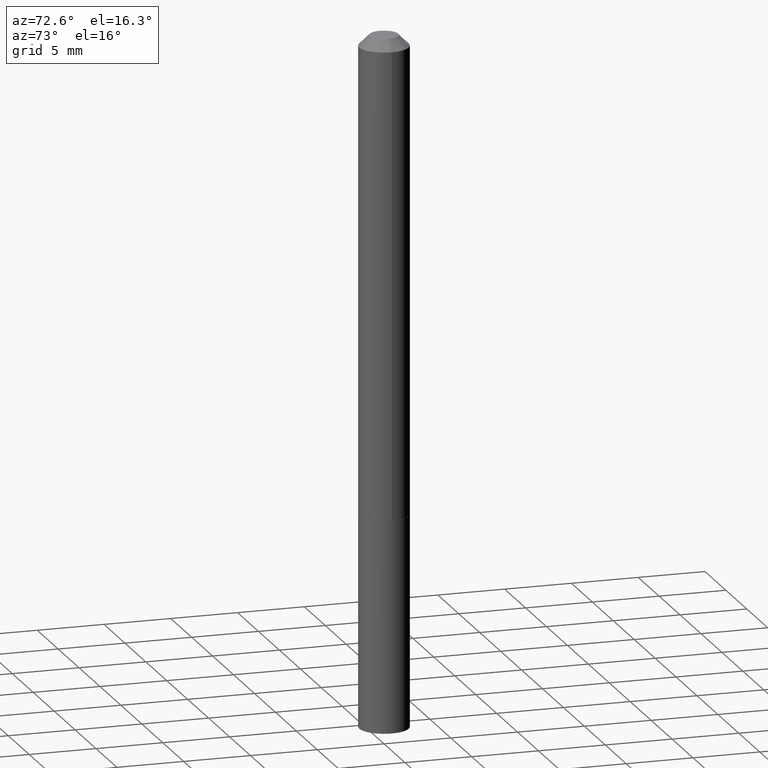
[diagram: clean part render]
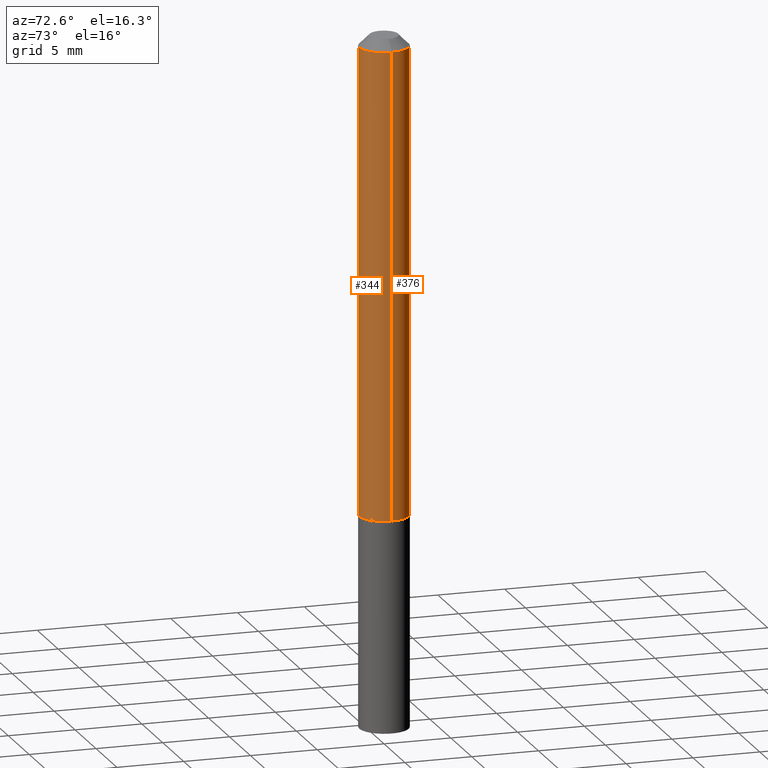
[diagram: same view with one multi-face feature highlighted, each face labeled with its STEP entity id]
A machine part, auxiliary view. The highlighted faces form ONE feature: a constant-radius fillet chain: 2 tangent blend faces with common blend radius 1.8504 mm. The faces share edges in the B-rep.
Their STEP definitions:
[1] entity #376 (Cylinder):
#7 = DIRECTION ( 'NONE',  ( 1.000000000000000000, -6.982962677686266711E-15, 4.876176775795936353E-29 ) ) ;
#14 = EDGE_CURVE ( 'NONE', #55, #127, #272, .T. ) ;
#31 = EDGE_CURVE ( 'NONE', #127, #251, #166, .T. ) ;
#33 = DIRECTION ( 'NONE',  ( -2.445468806185136877E-29, 3.491481338843145188E-15, 1.000000000000000000 ) ) ;
#37 = CARTESIAN_POINT ( 'NONE',  ( 7.642090019328602662E-31, -1.091087918388490267E-16, -0.03125000000000020817 ) ) ;
#38 = AXIS2_PLACEMENT_3D ( 'NONE', #37, #389, #361 ) ;
#55 = VERTEX_POINT ( 'NONE', #135 ) ;
#61 = LINE ( 'NONE', #120, #362 ) ;
#98 = DIRECTION ( 'NONE',  ( -2.445468806185136597E-29, 3.491481338843145583E-15, 1.000000000000000000 ) ) ;
#111 = AXIS2_PLACEMENT_3D ( 'NONE', #312, #374, #185 ) ;
#119 = AXIS2_PLACEMENT_3D ( 'NONE', #303, #98, #7 ) ;
#120 = CARTESIAN_POINT ( 'NONE',  ( 0.07285000000000008136, -5.087088310694450726E-16, 3.552294781167343726E-30 ) ) ;
#127 = VERTEX_POINT ( 'NONE', #279 ) ;
#135 = CARTESIAN_POINT ( 'NONE',  ( 0.07285000000000016462, -5.414240112144066527E-15, -1.405000000000000471 ) ) ;
#166 = LINE ( 'NONE', #224, #379 ) ;
#185 = DIRECTION ( 'NONE',  ( 1.000000000000000000, -6.982962677686262766E-15, 0.000000000000000000 ) ) ;
#200 = EDGE_CURVE ( 'NONE', #55, #227, #61, .T. ) ;
#201 = ORIENTED_EDGE ( 'NONE', *, *, #31, .T. ) ;
#211 = CARTESIAN_POINT ( 'NONE',  ( 0.07284999999999999809, -6.178176229082934830E-16, -0.03125000000000020817 ) ) ;
#224 = CARTESIAN_POINT ( 'NONE',  ( -0.07285000000000008136, 5.176303830012335635E-16, -3.583444213250702632E-30 ) ) ;
#227 = VERTEX_POINT ( 'NONE', #211 ) ;
#251 = VERTEX_POINT ( 'NONE', #267 ) ;
#267 = CARTESIAN_POINT ( 'NONE',  ( -0.07284999999999999809, -1.989689653455500531E-15, -0.03125000000000020817 ) ) ;
#272 = CIRCLE ( 'NONE', #111, 0.07285000000000016462 ) ;
#279 = CARTESIAN_POINT ( 'NONE',  ( -0.07285000000000016462, -4.387900898073387102E-15, -1.405000000000000471 ) ) ;
#280 = CIRCLE ( 'NONE', #38, 0.07284999999999999809 ) ;
#282 = DIRECTION ( 'NONE',  ( -2.445468806185136877E-29, 3.491481338843145188E-15, 1.000000000000000000 ) ) ;
#301 = EDGE_CURVE ( 'NONE', #227, #251, #280, .T. ) ;
#303 = CARTESIAN_POINT ( 'NONE',  ( 0.000000000000000000, 0.000000000000000000, 0.000000000000000000 ) ) ;
#305 = EDGE_LOOP ( 'NONE', ( #384, #201, #343, #369 ) ) ;
#306 = CYLINDRICAL_SURFACE ( 'NONE', #119, 0.07285000000000008136 ) ;
#312 = CARTESIAN_POINT ( 'NONE',  ( 3.435883672690118017E-29, -4.905531281074621455E-15, -1.405000000000000471 ) ) ;
#341 = FACE_OUTER_BOUND ( 'NONE', #305, .T. ) ;
#343 = ORIENTED_EDGE ( 'NONE', *, *, #301, .F. ) ;
#361 = DIRECTION ( 'NONE',  ( 1.000000000000000000, -6.982962677686265922E-15, 0.000000000000000000 ) ) ;
#362 = VECTOR ( 'NONE', #33, 39.37007874015748143 ) ;
#369 = ORIENTED_EDGE ( 'NONE', *, *, #200, .F. ) ;
#374 = DIRECTION ( 'NONE',  ( -2.445468806185136597E-29, 3.491481338843145583E-15, 1.000000000000000000 ) ) ;
#376 = ADVANCED_FACE ( 'NONE', ( #341 ), #306, .T. ) ;
#379 = VECTOR ( 'NONE', #282, 39.37007874015748143 ) ;
#384 = ORIENTED_EDGE ( 'NONE', *, *, #14, .T. ) ;
#389 = DIRECTION ( 'NONE',  ( -2.445468806185136597E-29, 3.491481338843145583E-15, 1.000000000000000000 ) ) ;
[2] entity #344 (Cylinder):
#15 = ORIENTED_EDGE ( 'NONE', *, *, #277, .T. ) ;
#29 = DIRECTION ( 'NONE',  ( 1.000000000000000000, -6.982962677686265922E-15, 0.000000000000000000 ) ) ;
#31 = EDGE_CURVE ( 'NONE', #127, #251, #166, .T. ) ;
#33 = DIRECTION ( 'NONE',  ( -2.445468806185136877E-29, 3.491481338843145188E-15, 1.000000000000000000 ) ) ;
#55 = VERTEX_POINT ( 'NONE', #135 ) ;
#61 = LINE ( 'NONE', #120, #362 ) ;
#65 = FACE_OUTER_BOUND ( 'NONE', #167, .T. ) ;
#96 = CYLINDRICAL_SURFACE ( 'NONE', #299, 0.07285000000000008136 ) ;
#120 = CARTESIAN_POINT ( 'NONE',  ( 0.07285000000000008136, -5.087088310694450726E-16, 3.552294781167343726E-30 ) ) ;
#124 = CIRCLE ( 'NONE', #252, 0.07284999999999999809 ) ;
#125 = CARTESIAN_POINT ( 'NONE',  ( 0.000000000000000000, 0.000000000000000000, 0.000000000000000000 ) ) ;
#127 = VERTEX_POINT ( 'NONE', #279 ) ;
#135 = CARTESIAN_POINT ( 'NONE',  ( 0.07285000000000016462, -5.414240112144066527E-15, -1.405000000000000471 ) ) ;
#147 = DIRECTION ( 'NONE',  ( -2.445468806185136597E-29, 3.491481338843145583E-15, 1.000000000000000000 ) ) ;
#159 = ORIENTED_EDGE ( 'NONE', *, *, #208, .F. ) ;
#166 = LINE ( 'NONE', #224, #379 ) ;
#167 = EDGE_LOOP ( 'NONE', ( #247, #15, #353, #159 ) ) ;
#181 = DIRECTION ( 'NONE',  ( 1.000000000000000000, -6.982962677686266711E-15, 4.876176775795936353E-29 ) ) ;
#200 = EDGE_CURVE ( 'NONE', #55, #227, #61, .T. ) ;
#208 = EDGE_CURVE ( 'NONE', #251, #227, #124, .T. ) ;
#211 = CARTESIAN_POINT ( 'NONE',  ( 0.07284999999999999809, -6.178176229082934830E-16, -0.03125000000000020817 ) ) ;
#212 = DIRECTION ( 'NONE',  ( -2.445468806185136597E-29, 3.491481338843145583E-15, 1.000000000000000000 ) ) ;
#224 = CARTESIAN_POINT ( 'NONE',  ( -0.07285000000000008136, 5.176303830012335635E-16, -3.583444213250702632E-30 ) ) ;
#227 = VERTEX_POINT ( 'NONE', #211 ) ;
#237 = CIRCLE ( 'NONE', #294, 0.07285000000000016462 ) ;
#247 = ORIENTED_EDGE ( 'NONE', *, *, #31, .F. ) ;
#251 = VERTEX_POINT ( 'NONE', #267 ) ;
#252 = AXIS2_PLACEMENT_3D ( 'NONE', #289, #297, #29 ) ;
#266 = DIRECTION ( 'NONE',  ( 1.000000000000000000, -6.982962677686262766E-15, 0.000000000000000000 ) ) ;
#267 = CARTESIAN_POINT ( 'NONE',  ( -0.07284999999999999809, -1.989689653455500531E-15, -0.03125000000000020817 ) ) ;
#270 = CARTESIAN_POINT ( 'NONE',  ( 3.435883672690118017E-29, -4.905531281074621455E-15, -1.405000000000000471 ) ) ;
#277 = EDGE_CURVE ( 'NONE', #127, #55, #237, .T. ) ;
#279 = CARTESIAN_POINT ( 'NONE',  ( -0.07285000000000016462, -4.387900898073387102E-15, -1.405000000000000471 ) ) ;
#282 = DIRECTION ( 'NONE',  ( -2.445468806185136877E-29, 3.491481338843145188E-15, 1.000000000000000000 ) ) ;
#289 = CARTESIAN_POINT ( 'NONE',  ( 7.642090019328602662E-31, -1.091087918388490267E-16, -0.03125000000000020817 ) ) ;
#294 = AXIS2_PLACEMENT_3D ( 'NONE', #270, #147, #266 ) ;
#297 = DIRECTION ( 'NONE',  ( -2.445468806185136597E-29, 3.491481338843145583E-15, 1.000000000000000000 ) ) ;
#299 = AXIS2_PLACEMENT_3D ( 'NONE', #125, #212, #181 ) ;
#344 = ADVANCED_FACE ( 'NONE', ( #65 ), #96, .T. ) ;
#353 = ORIENTED_EDGE ( 'NONE', *, *, #200, .T. ) ;
#362 = VECTOR ( 'NONE', #33, 39.37007874015748143 ) ;
#379 = VECTOR ( 'NONE', #282, 39.37007874015748143 ) ;